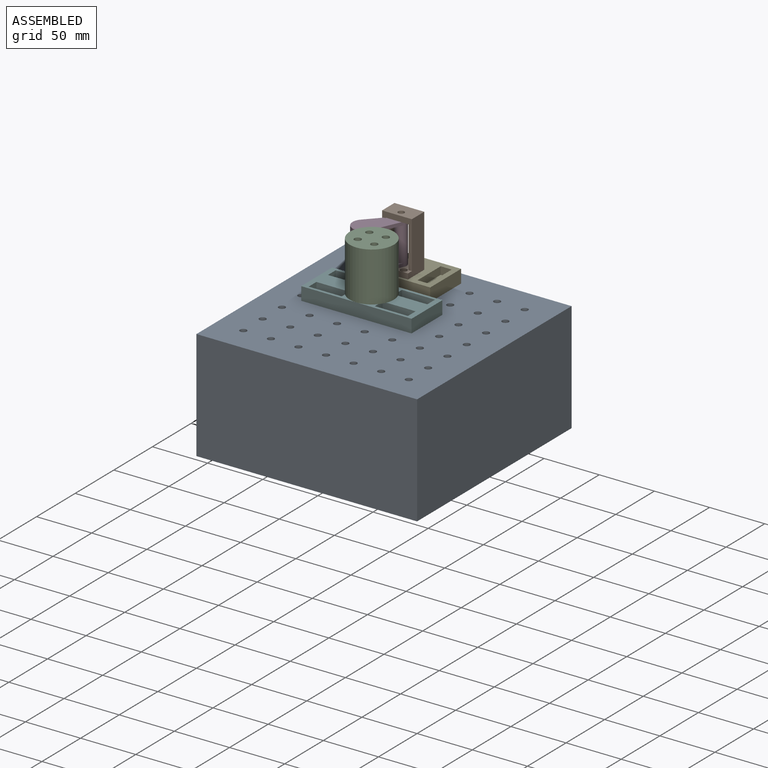
[diagram: assembled view]
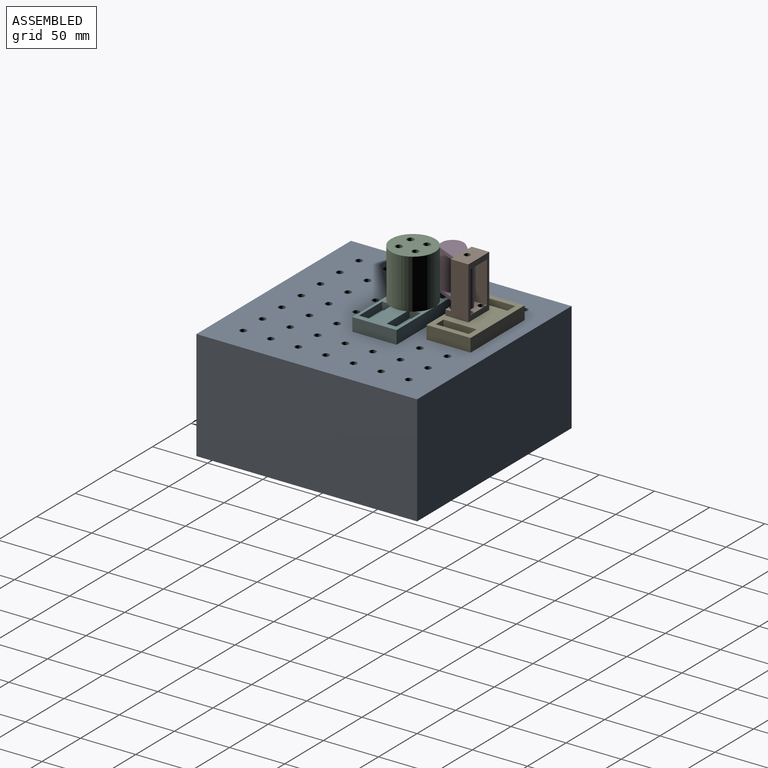
[diagram: assembled view, second angle]
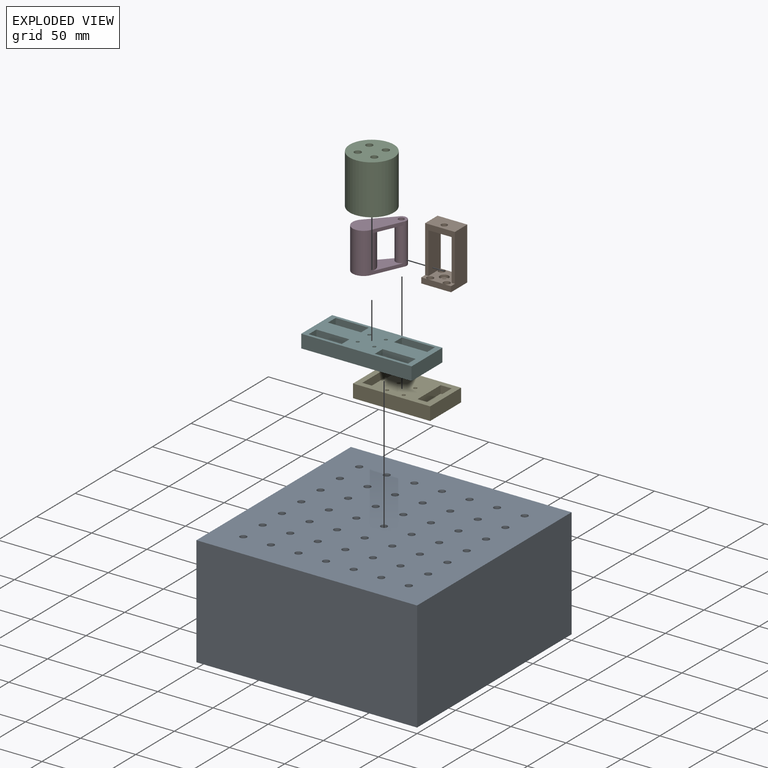
[diagram: exploded view]
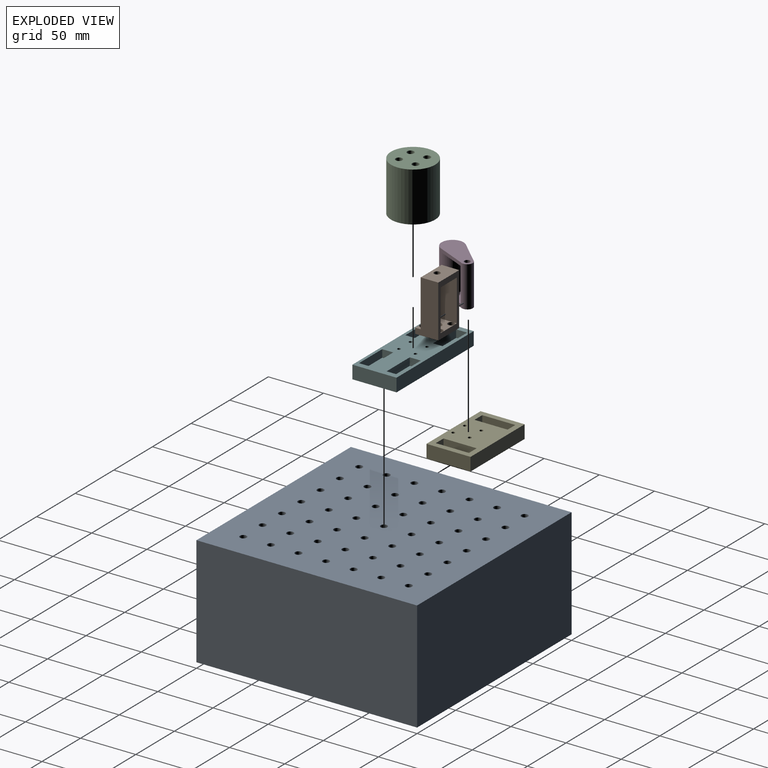
[diagram: exploded view, second angle]
ASSEMBLY  parts=6 mates=8
PART A: 55 faces, bbox 200x200x100 mm
  f0: plane 200x100mm, normal (0,-1,0), area 20000mm2, adj f1,f3,f4,f5
  f1: plane 200x100mm, normal (1,0,0), area 20000mm2, adj f0,f2,f4,f5
  f2: plane 200x100mm, normal (0,1,0), area 20000mm2, adj f1,f3,f4,f5
  f3: plane 200x100mm, normal (-1,0,0), area 20000mm2, adj f0,f2,f4,f5
  f4: plane 200x200mm, normal (0,0,1), area 38614.6mm2, adj f0,f1,f2,f3,f6,f7,f8,f9
  f5: plane 200x200mm, normal (0,0,-1), area 38614.6mm2, adj f0,f1,f2,f3,f6,f7,f8,f9
  f6: cylinder r=3mm len=100mm, axis (0,0,1), area 1885mm2, adj f4,f5
  f7: cylinder r=3mm len=100mm, axis (0,0,1), area 1885mm2, adj f4,f5
  f8: cylinder r=3mm len=100mm, axis (0,0,1), area 1885mm2, adj f4,f5
  f9: cylinder r=3mm len=100mm, axis (0,0,1), area 1885mm2, adj f4,f5
  f10: cylinder r=3mm len=100mm, axis (0,0,1), area 1885mm2, adj f4,f5
  f11: cylinder r=3mm len=100mm, axis (0,0,1), area 1885mm2, adj f4,f5
  f12: cylinder r=3mm len=100mm, axis (0,0,1), area 1885mm2, adj f4,f5
  f13: cylinder r=3mm len=100mm, axis (0,0,1), area 1885mm2, adj f4,f5
  f14: cylinder r=3mm len=100mm, axis (0,0,1), area 1885mm2, adj f4,f5
  f15: cylinder r=3mm len=100mm, axis (0,0,1), area 1885mm2, adj f4,f5
  f16: cylinder r=3mm len=100mm, axis (0,0,1), area 1885mm2, adj f4,f5
  f17: cylinder r=3mm len=100mm, axis (0,0,1), area 1885mm2, adj f4,f5
  f18: cylinder r=3mm len=100mm, axis (0,0,1), area 1885mm2, adj f4,f5
  f19: cylinder r=3mm len=100mm, axis (0,0,1), area 1885mm2, adj f4,f5
  f20: cylinder r=3mm len=100mm, axis (0,0,1), area 1885mm2, adj f4,f5
  f21: cylinder r=3mm len=100mm, axis (0,0,1), area 1885mm2, adj f4,f5
  f22: cylinder r=3mm len=100mm, axis (0,0,1), area 1885mm2, adj f4,f5
  f23: cylinder r=3mm len=100mm, axis (0,0,1), area 1885mm2, adj f4,f5
  f24: cylinder r=3mm len=100mm, axis (0,0,1), area 1885mm2, adj f4,f5
  f25: cylinder r=3mm len=100mm, axis (0,0,1), area 1885mm2, adj f4,f5
  f26: cylinder r=3mm len=100mm, axis (0,0,1), area 1885mm2, adj f4,f5
  f27: cylinder r=3mm len=100mm, axis (0,0,1), area 1885mm2, adj f4,f5
  f28: cylinder r=3mm len=100mm, axis (0,0,1), area 1885mm2, adj f4,f5
  f29: cylinder r=3mm len=100mm, axis (0,0,1), area 1885mm2, adj f4,f5
  f30: cylinder r=3mm len=100mm, axis (0,0,1), area 1885mm2, adj f4,f5
  f31: cylinder r=3mm len=100mm, axis (0,0,1), area 1885mm2, adj f4,f5
  f32: cylinder r=3mm len=100mm, axis (0,0,1), area 1885mm2, adj f4,f5
  f33: cylinder r=3mm len=100mm, axis (0,0,1), area 1885mm2, adj f4,f5
  f34: cylinder r=3mm len=100mm, axis (0,0,1), area 1885mm2, adj f4,f5
  f35: cylinder r=3mm len=100mm, axis (0,0,1), area 1885mm2, adj f4,f5
  f36: cylinder r=3mm len=100mm, axis (0,0,1), area 1885mm2, adj f4,f5
  f37: cylinder r=3mm len=100mm, axis (0,0,1), area 1885mm2, adj f4,f5
  f38: cylinder r=3mm len=100mm, axis (0,0,1), area 1885mm2, adj f4,f5
  f39: cylinder r=3mm len=100mm, axis (0,0,1), area 1885mm2, adj f4,f5
  f40: cylinder r=3mm len=100mm, axis (0,0,1), area 1885mm2, adj f4,f5
  f41: cylinder r=3mm len=100mm, axis (0,0,1), area 1885mm2, adj f4,f5
  f42: cylinder r=3mm len=100mm, axis (0,0,1), area 1885mm2, adj f4,f5
  f43: cylinder r=3mm len=100mm, axis (0,0,1), area 1885mm2, adj f4,f5
  f44: cylinder r=3mm len=100mm, axis (0,0,1), area 1885mm2, adj f4,f5
  f45: cylinder r=3mm len=100mm, axis (0,0,1), area 1885mm2, adj f4,f5
  f46: cylinder r=3mm len=100mm, axis (0,0,1), area 1885mm2, adj f4,f5
  f47: cylinder r=3mm len=100mm, axis (0,0,1), area 1885mm2, adj f4,f5
  f48: cylinder r=3mm len=100mm, axis (0,0,1), area 1885mm2, adj f4,f5
  f49: cylinder r=3mm len=100mm, axis (0,0,1), area 1885mm2, adj f4,f5
  f50: cylinder r=3mm len=100mm, axis (0,0,1), area 1885mm2, adj f4,f5
  f51: cylinder r=3mm len=100mm, axis (0,0,1), area 1885mm2, adj f4,f5
  f52: cylinder r=3mm len=100mm, axis (0,0,1), area 1885mm2, adj f4,f5
  f53: cylinder r=3mm len=100mm, axis (0,0,1), area 1885mm2, adj f4,f5
  f54: cylinder r=3mm len=100mm, axis (0,0,1), area 1885mm2, adj f4,f5
PART B: 29 faces, bbox 27x21x47.5 mm
  f0: plane 27x16mm, normal (0,0,1), area 408.2mm2, adj f1,f7,f13,f14,f28
  f1: plane 47.5x21mm, normal (-1,0,0), area 785mm2, adj f0,f2,f12,f14,f15,f28
  f2: plane 27x5mm, normal (0,-1,0), area 135mm2, adj f1,f12,f13,f15
  f3: plane 37.5x16mm, normal (1,0,0), area 600mm2, adj f5,f14,f15,f28
  f4: plane 37.5x16mm, normal (-1,0,0), area 600mm2, adj f5,f14,f15,f28
  f5: plane 21x16mm, normal (0,0,-1), area 285.7mm2, adj f3,f4,f14,f25,f28
  f6: cylinder r=2.75mm len=5.5mm, axis (0,0,1), area 43.2mm2, adj f12,f26
  f7: cylinder r=2.75mm len=5.5mm, axis (0,0,1), area 43.2mm2, adj f0,f24
  f8: cylinder r=1.5mm len=3mm, axis (0,0,-1), area 18.8mm2, adj f12,f22
  f9: cylinder r=1.5mm len=3mm, axis (0,0,-1), area 18.8mm2, adj f12,f20
  f10: cylinder r=1.5mm len=3mm, axis (0,0,-1), area 18.8mm2, adj f12,f18
  f11: cylinder r=1.5mm len=3mm, axis (0,0,-1), area 18.8mm2, adj f12,f16
  f12: plane 27x21mm, normal (0,0,-1), area 515mm2, adj f1,f2,f6,f8,f9,f10,f11,f13
  f13: plane 47.5x21mm, normal (1,0,0), area 785mm2, adj f0,f2,f12,f14,f15,f28
  f14: plane 47.5x27mm, normal (0,1,0), area 495mm2, adj f0,f1,f3,f4,f5,f12,f13,f15
  f15: plane 27x21mm, normal (0,0,1), area 308mm2, adj f1,f2,f3,f4,f13,f14,f17,f19
  f16: plane 5.99x5.99mm, normal (0,0,1), area 21.1mm2, adj f11,f17
  f17: cylinder r=2.99mm len=5.99mm, axis (0,0,1), area 56.5mm2, adj f15,f16
  f18: plane 5.99x5.99mm, normal (0,0,1), area 21.1mm2, adj f10,f19
  f19: cylinder r=2.99mm len=5.99mm, axis (0,0,1), area 56.5mm2, adj f15,f18
  f20: plane 5.99x5.99mm, normal (0,0,1), area 21.1mm2, adj f9,f21
  f21: cylinder r=2.99mm len=5.99mm, axis (0,0,1), area 56.5mm2, adj f15,f20
  f22: plane 5.99x5.99mm, normal (0,0,1), area 21.1mm2, adj f8,f23
  f23: cylinder r=2.99mm len=5.99mm, axis (0,0,1), area 56.5mm2, adj f15,f22
  f24: plane 8x8mm, normal (0,0,-1), area 26.5mm2, adj f7,f25
  f25: cylinder r=4mm len=8mm, axis (0,0,-1), area 62.8mm2, adj f5,f24
  f26: plane 8x8mm, normal (0,0,1), area 26.5mm2, adj f6,f27
  f27: cylinder r=4mm len=8mm, axis (0,0,1), area 62.8mm2, adj f15,f26
  f28: plane 42.5x27mm, normal (0,-1,0), area 360mm2, adj f0,f1,f3,f4,f5,f13,f15
PART C: 15 faces, bbox 40x40x45 mm
  f0: cylinder r=1.5mm len=15mm, axis (0,0,1), area 141.4mm2, adj f6,f13
  f1: cylinder r=1.5mm len=15mm, axis (0,0,1), area 141.4mm2, adj f6,f11
  f2: cylinder r=1.5mm len=15mm, axis (0,0,1), area 141.4mm2, adj f6,f9
  f3: cylinder r=1.5mm len=15mm, axis (0,0,1), area 141.4mm2, adj f6,f7
  f4: cylinder r=20mm len=45mm, axis (0,0,-1), area 5654.9mm2, adj f5,f6
  f5: plane 40x40mm, normal (0,0,1), area 1139.7mm2, adj f4,f8,f10,f12,f14
  f6: plane 40x40mm, normal (0,0,-1), area 1228.4mm2, adj f0,f1,f2,f3,f4
  f7: plane 6.1x6.1mm, normal (0,0,1), area 22.2mm2, adj f3,f8
  f8: cylinder r=3.05mm len=30mm, axis (0,0,1), area 574.9mm2, adj f5,f7
  f9: plane 6.1x6.1mm, normal (0,0,1), area 22.2mm2, adj f2,f10
  f10: cylinder r=3.05mm len=30mm, axis (0,0,1), area 574.9mm2, adj f5,f9
  f11: plane 6.1x6.1mm, normal (0,0,1), area 22.2mm2, adj f1,f12
  f12: cylinder r=3.05mm len=30mm, axis (0,0,1), area 574.9mm2, adj f5,f11
  f13: plane 6.1x6.1mm, normal (0,0,1), area 22.2mm2, adj f0,f14
  f14: cylinder r=3.05mm len=30mm, axis (0,0,1), area 574.9mm2, adj f5,f13
PART D: 11 faces, bbox 45x20x37 mm
  f0: cylinder r=2.6mm len=37mm, axis (0,0,-1), area 604.4mm2, adj f6,f9
  f1: cylinder r=5mm len=37mm, axis (0,0,-1), area 1068.1mm2, adj f3,f4,f5,f6,f7,f8,f9,f10
  f2: cylinder r=10mm len=37mm, axis (0,0,-1), area 2156.7mm2, adj f3,f4,f5,f6,f7,f8,f9,f10
  f3: plane 28.31x19.71mm, normal (0,0,-1), area 257.9mm2, adj f1,f2,f4,f5
  f4: plane 28.31x4.86mm, normal (-0.17,0.99,0), area 86.2mm2, adj f1,f2,f3,f6
  f5: plane 28.31x4.86mm, normal (-0.17,-0.99,0), area 86.2mm2, adj f1,f2,f3,f6
  f6: plane 45x20mm, normal (0,0,1), area 629.3mm2, adj f0,f1,f2,f4,f5
  f7: plane 28.31x4.86mm, normal (-0.17,-0.99,0), area 86.2mm2, adj f1,f2,f9,f10
  f8: plane 28.31x4.86mm, normal (-0.17,0.99,0), area 86.2mm2, adj f1,f2,f9,f10
  f9: plane 45x20mm, normal (0,0,-1), area 629.3mm2, adj f0,f1,f2,f7,f8
  f10: plane 28.31x19.71mm, normal (0,0,1), area 257.9mm2, adj f1,f2,f7,f8
PART E: 54 faces, bbox 70x40x12 mm
  f0: cylinder r=1.5mm len=9mm, axis (0,0,-1), area 84.8mm2, adj f8,f32
  f1: cylinder r=1.5mm len=9mm, axis (0,0,-1), area 84.8mm2, adj f8,f53
  f2: cylinder r=1.5mm len=9mm, axis (0,0,-1), area 84.8mm2, adj f8,f46
  f3: cylinder r=1.5mm len=9mm, axis (0,0,-1), area 84.8mm2, adj f8,f39
  f4: plane 30x5mm, normal (1,0,0), area 150mm2, adj f12,f13,f17,f19
  f5: plane 30x5mm, normal (-1,0,0), area 150mm2, adj f14,f15,f17,f23
  f6: plane 30x5mm, normal (1,0,0), area 150mm2, adj f14,f15,f17,f24
  f7: plane 30x5mm, normal (-1,0,0), area 150mm2, adj f12,f13,f17,f21
  f8: plane 70x40mm, normal (0,0,1), area 2171.7mm2, adj f0,f1,f2,f3,f9,f10,f11,f12
  f9: plane 40x12mm, normal (1,0,0), area 480mm2, adj f8,f10,f16,f17
  f10: plane 70x12mm, normal (0,1,0), area 840mm2, adj f8,f9,f11,f17
  f11: plane 40x12mm, normal (-1,0,0), area 480mm2, adj f8,f10,f16,f17
  f12: plane 12x10mm, normal (0,1,0), area 100mm2, adj f4,f7,f8,f17,f18,f19,f20,f21
  f13: plane 12x10mm, normal (0,-1,0), area 100mm2, adj f4,f7,f8,f17,f18,f19,f20,f21
  f14: plane 12x10mm, normal (0,1,0), area 100mm2, adj f5,f6,f8,f17,f22,f23,f24,f25
  f15: plane 12x10mm, normal (0,-1,0), area 100mm2, adj f5,f6,f8,f17,f22,f23,f24,f25
  f16: plane 70x12mm, normal (0,-1,0), area 840mm2, adj f8,f9,f11,f17
  f17: plane 70x40mm, normal (0,0,-1), area 2335.2mm2, adj f4,f5,f6,f7,f9,f10,f11,f12
  f18: plane 30x7mm, normal (1,0,0), area 210mm2, adj f8,f12,f13,f19
  f19: plane 30x2mm, normal (0,0,1), area 60mm2, adj f4,f12,f13,f18
  f20: plane 30x7mm, normal (-1,0,0), area 210mm2, adj f8,f12,f13,f21
  f21: plane 30x2mm, normal (0,0,1), area 60mm2, adj f7,f12,f13,f20
  f22: plane 30x7mm, normal (-1,0,0), area 210mm2, adj f8,f14,f15,f23
  f23: plane 30x2mm, normal (0,0,1), area 60mm2, adj f5,f14,f15,f22
  f24: plane 30x2mm, normal (0,0,1), area 60mm2, adj f6,f14,f15,f25
  f25: plane 30x7mm, normal (1,0,0), area 210mm2, adj f8,f14,f15,f24
  f26: plane 3.18x3mm, normal (0,-1,0), area 9.5mm2, adj f17,f27,f31,f32
  f27: plane 3x2.75mm, normal (-0.87,-0.5,0), area 9.5mm2, adj f17,f26,f28,f32
  f28: plane 3x2.75mm, normal (-0.87,0.5,0), area 9.5mm2, adj f17,f27,f29,f32
  f29: plane 3.18x3mm, normal (0,1,0), area 9.5mm2, adj f17,f28,f30,f32
  f30: plane 3x2.75mm, normal (0.87,0.5,0), area 9.5mm2, adj f17,f29,f31,f32
  f31: plane 3x2.75mm, normal (0.87,-0.5,0), area 9.5mm2, adj f17,f26,f30,f32
  f32: plane 6.35x5.5mm, normal (0,0,-1), area 19.1mm2, adj f0,f26,f27,f28,f29,f30,f31
  f33: plane 3.18x3mm, normal (0,-1,0), area 9.5mm2, adj f17,f34,f38,f39
  f34: plane 3x2.75mm, normal (-0.87,-0.5,0), area 9.5mm2, adj f17,f33,f35,f39
  f35: plane 3x2.75mm, normal (-0.87,0.5,0), area 9.5mm2, adj f17,f34,f36,f39
  f36: plane 3.18x3mm, normal (0,1,0), area 9.5mm2, adj f17,f35,f37,f39
  f37: plane 3x2.75mm, normal (0.87,0.5,0), area 9.5mm2, adj f17,f36,f38,f39
  f38: plane 3x2.75mm, normal (0.87,-0.5,0), area 9.5mm2, adj f17,f33,f37,f39
  f39: plane 6.35x5.5mm, normal (0,0,-1), area 19.1mm2, adj f3,f33,f34,f35,f36,f37,f38
  f40: plane 3.18x3mm, normal (0,-1,0), area 9.5mm2, adj f17,f41,f45,f46
  f41: plane 3x2.75mm, normal (-0.87,-0.5,0), area 9.5mm2, adj f17,f40,f42,f46
  f42: plane 3x2.75mm, normal (-0.87,0.5,0), area 9.5mm2, adj f17,f41,f43,f46
  f43: plane 3.18x3mm, normal (0,1,0), area 9.5mm2, adj f17,f42,f44,f46
  f44: plane 3x2.75mm, normal (0.87,0.5,0), area 9.5mm2, adj f17,f43,f45,f46
  f45: plane 3x2.75mm, normal (0.87,-0.5,0), area 9.5mm2, adj f17,f40,f44,f46
  f46: plane 6.35x5.5mm, normal (0,0,-1), area 19.1mm2, adj f2,f40,f41,f42,f43,f44,f45
  f47: plane 3.18x3mm, normal (0,-1,0), area 9.5mm2, adj f17,f48,f52,f53
  f48: plane 3x2.75mm, normal (-0.87,-0.5,0), area 9.5mm2, adj f17,f47,f49,f53
  f49: plane 3x2.75mm, normal (-0.87,0.5,0), area 9.5mm2, adj f17,f48,f50,f53
  f50: plane 3.18x3mm, normal (0,1,0), area 9.5mm2, adj f17,f49,f51,f53
  f51: plane 3x2.75mm, normal (0.87,0.5,0), area 9.5mm2, adj f17,f50,f52,f53
  f52: plane 3x2.75mm, normal (0.87,-0.5,0), area 9.5mm2, adj f17,f47,f51,f53
  f53: plane 6.35x5.5mm, normal (0,0,-1), area 19.1mm2, adj f1,f47,f48,f49,f50,f51,f52
PART F: 70 faces, bbox 100x12x40 mm
  f0: cylinder r=1.5mm len=9mm, axis (0,1,0), area 84.8mm2, adj f13,f48
  f1: cylinder r=1.5mm len=9mm, axis (0,1,0), area 84.8mm2, adj f13,f55
  f2: cylinder r=1.5mm len=9mm, axis (0,1,0), area 84.8mm2, adj f13,f62
  f3: cylinder r=1.5mm len=9mm, axis (0,1,0), area 84.8mm2, adj f13,f69
  f4: plane 100x40mm, normal (0,1,0), area 3175.2mm2, adj f5,f6,f7,f8,f9,f10,f11,f12
  f5: plane 30x5mm, normal (0,0,1), area 150mm2, adj f4,f17,f18,f27
  f6: plane 30x5mm, normal (0,0,-1), area 150mm2, adj f4,f19,f20,f33
  f7: plane 30x5mm, normal (0,0,1), area 150mm2, adj f4,f21,f24,f35
  f8: plane 30x5mm, normal (0,0,-1), area 150mm2, adj f4,f21,f24,f36
  f9: plane 30x5mm, normal (0,0,-1), area 150mm2, adj f4,f22,f23,f39
  f10: plane 30x5mm, normal (0,0,-1), area 150mm2, adj f4,f17,f18,f29
  f11: plane 30x5mm, normal (0,0,1), area 150mm2, adj f4,f19,f20,f31
  f12: plane 30x5mm, normal (0,0,1), area 150mm2, adj f4,f22,f23,f41
  f13: plane 100x40mm, normal (0,-1,0), area 2771.7mm2, adj f0,f1,f2,f3,f14,f15,f16,f17
  f14: plane 100x12mm, normal (0,0,-1), area 1200mm2, adj f4,f13,f15,f25
  f15: plane 40x12mm, normal (1,0,0), area 480mm2, adj f4,f13,f14,f16
  f16: plane 100x12mm, normal (0,0,1), area 1200mm2, adj f4,f13,f15,f25
  f17: plane 12x10mm, normal (-1,0,0), area 100mm2, adj f4,f5,f10,f13,f26,f27,f28,f29
  f18: plane 12x10mm, normal (1,0,0), area 100mm2, adj f4,f5,f10,f13,f26,f27,f28,f29
  f19: plane 12x10mm, normal (1,0,0), area 100mm2, adj f4,f6,f11,f13,f30,f31,f32,f33
  f20: plane 12x10mm, normal (-1,0,0), area 100mm2, adj f4,f6,f11,f13,f30,f31,f32,f33
  f21: plane 12x10mm, normal (1,0,0), area 100mm2, adj f4,f7,f8,f13,f34,f35,f36,f37
  f22: plane 12x10mm, normal (1,0,0), area 100mm2, adj f4,f9,f12,f13,f38,f39,f40,f41
  f23: plane 12x10mm, normal (-1,0,0), area 100mm2, adj f4,f9,f12,f13,f38,f39,f40,f41
  f24: plane 12x10mm, normal (-1,0,0), area 100mm2, adj f4,f7,f8,f13,f34,f35,f36,f37
  f25: plane 40x12mm, normal (-1,0,0), area 480mm2, adj f4,f13,f14,f16
  f26: plane 30x7mm, normal (0,0,1), area 210mm2, adj f13,f17,f18,f27
  f27: plane 30x2mm, normal (0,-1,0), area 60mm2, adj f5,f17,f18,f26
  f28: plane 30x7mm, normal (0,0,-1), area 210mm2, adj f13,f17,f18,f29
  f29: plane 30x2mm, normal (0,-1,0), area 60mm2, adj f10,f17,f18,f28
  f30: plane 30x7mm, normal (0,0,1), area 210mm2, adj f13,f19,f20,f31
  f31: plane 30x2mm, normal (0,-1,0), area 60mm2, adj f11,f19,f20,f30
  f32: plane 30x7mm, normal (0,0,-1), area 210mm2, adj f13,f19,f20,f33
  f33: plane 30x2mm, normal (0,-1,0), area 60mm2, adj f6,f19,f20,f32
  f34: plane 30x7mm, normal (0,0,1), area 210mm2, adj f13,f21,f24,f35
  f35: plane 30x2mm, normal (0,-1,0), area 60mm2, adj f7,f21,f24,f34
  f36: plane 30x2mm, normal (0,-1,0), area 60mm2, adj f8,f21,f24,f37
  f37: plane 30x7mm, normal (0,0,-1), area 210mm2, adj f13,f21,f24,f36
  f38: plane 30x7mm, normal (0,0,-1), area 210mm2, adj f13,f22,f23,f39
  f39: plane 30x2mm, normal (0,-1,0), area 60mm2, adj f9,f22,f23,f38
  f40: plane 30x7mm, normal (0,0,1), area 210mm2, adj f13,f22,f23,f41
  f41: plane 30x2mm, normal (0,-1,0), area 60mm2, adj f12,f22,f23,f40
  f42: plane 3x2.75mm, normal (-0.87,0,0.5), area 9.5mm2, adj f4,f43,f47,f48
  f43: plane 3.18x3mm, normal (0,0,1), area 9.5mm2, adj f4,f42,f44,f48
  f44: plane 3x2.75mm, normal (0.87,0,0.5), area 9.5mm2, adj f4,f43,f45,f48
  f45: plane 3x2.75mm, normal (0.87,0,-0.5), area 9.5mm2, adj f4,f44,f46,f48
  f46: plane 3.18x3mm, normal (0,0,-1), area 9.5mm2, adj f4,f45,f47,f48
  f47: plane 3x2.75mm, normal (-0.87,0,-0.5), area 9.5mm2, adj f4,f42,f46,f48
  f48: plane 6.35x5.5mm, normal (0,1,0), area 19.1mm2, adj f0,f42,f43,f44,f45,f46,f47
  f49: plane 3x2.75mm, normal (0.87,0,-0.5), area 9.5mm2, adj f4,f50,f54,f55
  f50: plane 3.18x3mm, normal (0,0,-1), area 9.5mm2, adj f4,f49,f51,f55
  f51: plane 3x2.75mm, normal (-0.87,0,-0.5), area 9.5mm2, adj f4,f50,f52,f55
  f52: plane 3x2.75mm, normal (-0.87,0,0.5), area 9.5mm2, adj f4,f51,f53,f55
  f53: plane 3.18x3mm, normal (0,0,1), area 9.5mm2, adj f4,f52,f54,f55
  f54: plane 3x2.75mm, normal (0.87,0,0.5), area 9.5mm2, adj f4,f49,f53,f55
  f55: plane 6.35x5.5mm, normal (0,1,0), area 19.1mm2, adj f1,f49,f50,f51,f52,f53,f54
  f56: plane 3x2.75mm, normal (-0.87,0,0.5), area 9.5mm2, adj f4,f57,f61,f62
  f57: plane 3.18x3mm, normal (0,0,1), area 9.5mm2, adj f4,f56,f58,f62
  f58: plane 3x2.75mm, normal (0.87,0,0.5), area 9.5mm2, adj f4,f57,f59,f62
  f59: plane 3x2.75mm, normal (0.87,0,-0.5), area 9.5mm2, adj f4,f58,f60,f62
  f60: plane 3.18x3mm, normal (0,0,-1), area 9.5mm2, adj f4,f59,f61,f62
  f61: plane 3x2.75mm, normal (-0.87,0,-0.5), area 9.5mm2, adj f4,f56,f60,f62
  f62: plane 6.35x5.5mm, normal (0,1,0), area 19.1mm2, adj f2,f56,f57,f58,f59,f60,f61
  f63: plane 3x2.75mm, normal (0.87,0,-0.5), area 9.5mm2, adj f4,f64,f68,f69
  f64: plane 3.18x3mm, normal (0,0,-1), area 9.5mm2, adj f4,f63,f65,f69
  f65: plane 3x2.75mm, normal (-0.87,0,-0.5), area 9.5mm2, adj f4,f64,f66,f69
  f66: plane 3x2.75mm, normal (-0.87,0,0.5), area 9.5mm2, adj f4,f65,f67,f69
  f67: plane 3.18x3mm, normal (0,0,1), area 9.5mm2, adj f4,f66,f68,f69
  f68: plane 3x2.75mm, normal (0.87,0,0.5), area 9.5mm2, adj f4,f63,f67,f69
  f69: plane 6.35x5.5mm, normal (0,1,0), area 19.1mm2, adj f3,f63,f64,f65,f66,f67,f68
PLACE A at identity fixed
PLACE B rot(axis=(0,0,-1),0deg) t=(-24.99,68.5,135.75)mm
PLACE C rot(axis=(0,0,1),0deg) t=(-19.8,12.5,112)mm
PLACE D rot(axis=(0,0,-1),123.7deg) t=(-24.99,58,120)mm
PLACE E rot(axis=(0,0,-1),0deg) t=(-24.99,65.5,100)mm fixed
PLACE F rot(axis=(-1,0,0),90deg) t=(-19.8,12.5,100)mm
MATE revolute B.f6 <-> D.f0  axis (0,0,1) through (-24.99,58,117)mm
MATE cylindrical E.f1 <-> B.f19  axis (0,0,1) through (-32.5,50.5,112)mm
MATE cylindrical F.f0 <-> C.f0  axis (0,0,1) through (-27.3,20,112)mm
MATE planar A.f18 <-> E.f17  axis (0,0,1) through (75,0,100)mm
MATE cylindrical E.f3 <-> B.f11  axis (0,0,1) through (-17.5,50.49,112)mm
MATE planar C.f2 <-> F.f13  axis (0,0,-1) through (-12.3,5,112)mm
MATE planar A.f24 <-> F.f4  axis (0,0,1) through (-50,0,100)mm
MATE planar E.f0 <-> B.f21  axis (0,0,1) through (-32.49,65.5,112)mm
